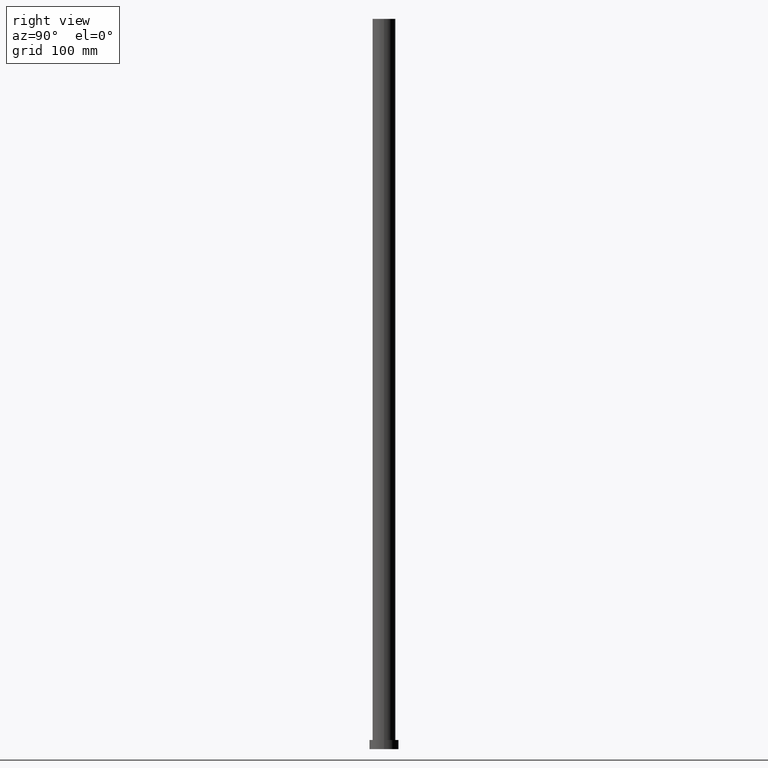
[diagram: clean part render]
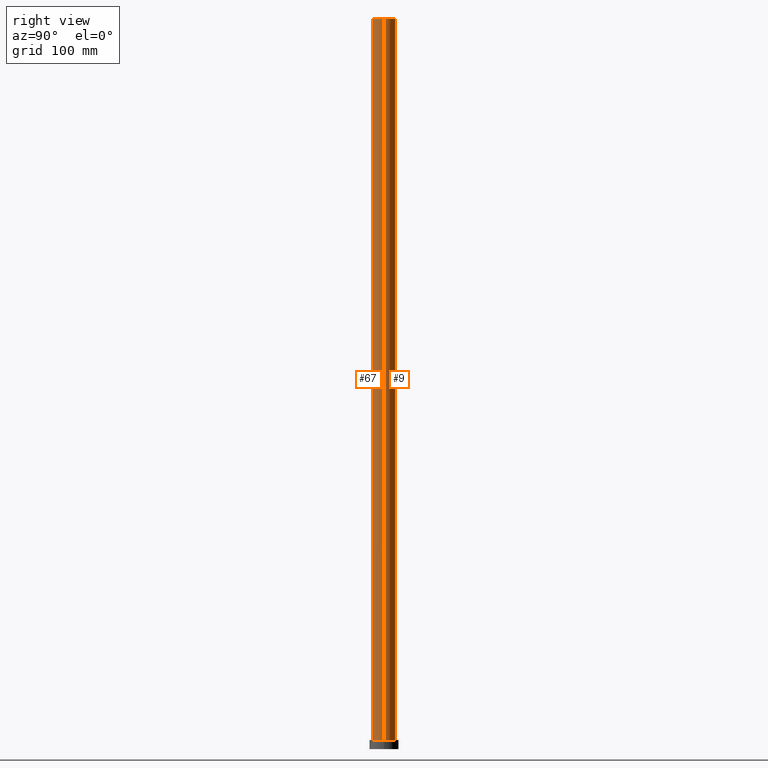
[diagram: same view with one multi-face feature highlighted, each face labeled with its STEP entity id]
A machine part, right view. The highlighted faces form ONE feature: a constant-radius fillet chain: 2 tangent blend faces with common blend radius 12.5 mm. The faces share edges in the B-rep.
Their STEP definitions:
[1] entity #9 (Cylinder):
#2 = DIRECTION ( 'NONE',  ( 0.000000000000000000, 0.000000000000000000, 1.000000000000000000 ) ) ;
#9 = ADVANCED_FACE ( 'NONE', ( #160 ), #121, .T. ) ;
#11 = ORIENTED_EDGE ( 'NONE', *, *, #185, .F. ) ;
#25 = AXIS2_PLACEMENT_3D ( 'NONE', #81, #53, #101 ) ;
#29 = CARTESIAN_POINT ( 'NONE',  ( 12.50000000000000000, 1.530808498934191127E-15, 800.0000000000000000 ) ) ;
#30 = ORIENTED_EDGE ( 'NONE', *, *, #228, .T. ) ;
#34 = EDGE_LOOP ( 'NONE', ( #11, #30, #189, #125 ) ) ;
#36 = VECTOR ( 'NONE', #246, 1000.000000000000000 ) ;
#50 = CIRCLE ( 'NONE', #239, 12.50000000000000000 ) ;
#53 = DIRECTION ( 'NONE',  ( -0.000000000000000000, -0.000000000000000000, -1.000000000000000000 ) ) ;
#57 = CARTESIAN_POINT ( 'NONE',  ( 12.50000000000000000, 1.530808498934191127E-15, 800.0000000000000000 ) ) ;
#60 = CIRCLE ( 'NONE', #61, 12.50000000000000000 ) ;
#61 = AXIS2_PLACEMENT_3D ( 'NONE', #175, #2, #240 ) ;
#66 = VERTEX_POINT ( 'NONE', #117 ) ;
#70 = VERTEX_POINT ( 'NONE', #181 ) ;
#81 = CARTESIAN_POINT ( 'NONE',  ( 0.000000000000000000, 0.000000000000000000, 800.0000000000000000 ) ) ;
#101 = DIRECTION ( 'NONE',  ( -1.000000000000000000, 0.000000000000000000, 0.000000000000000000 ) ) ;
#114 = LINE ( 'NONE', #194, #123 ) ;
#117 = CARTESIAN_POINT ( 'NONE',  ( -12.50000000000000000, 0.000000000000000000, 10.00000000000000000 ) ) ;
#118 = LINE ( 'NONE', #29, #36 ) ;
#121 = CYLINDRICAL_SURFACE ( 'NONE', #25, 12.50000000000000000 ) ;
#123 = VECTOR ( 'NONE', #211, 1000.000000000000000 ) ;
#125 = ORIENTED_EDGE ( 'NONE', *, *, #153, .F. ) ;
#137 = DIRECTION ( 'NONE',  ( 0.000000000000000000, 0.000000000000000000, 1.000000000000000000 ) ) ;
#153 = EDGE_CURVE ( 'NONE', #70, #66, #114, .T. ) ;
#160 = FACE_OUTER_BOUND ( 'NONE', #34, .T. ) ;
#175 = CARTESIAN_POINT ( 'NONE',  ( 0.000000000000000000, 0.000000000000000000, 800.0000000000000000 ) ) ;
#178 = VERTEX_POINT ( 'NONE', #57 ) ;
#179 = VERTEX_POINT ( 'NONE', #212 ) ;
#181 = CARTESIAN_POINT ( 'NONE',  ( -12.50000000000000000, 0.000000000000000000, 800.0000000000000000 ) ) ;
#185 = EDGE_CURVE ( 'NONE', #178, #70, #60, .T. ) ;
#189 = ORIENTED_EDGE ( 'NONE', *, *, #213, .T. ) ;
#194 = CARTESIAN_POINT ( 'NONE',  ( -12.50000000000000000, 0.000000000000000000, 800.0000000000000000 ) ) ;
#197 = DIRECTION ( 'NONE',  ( 1.000000000000000000, 0.000000000000000000, 0.000000000000000000 ) ) ;
#211 = DIRECTION ( 'NONE',  ( -0.000000000000000000, -0.000000000000000000, -1.000000000000000000 ) ) ;
#212 = CARTESIAN_POINT ( 'NONE',  ( 12.50000000000000000, 1.530808498934191127E-15, 10.00000000000000000 ) ) ;
#213 = EDGE_CURVE ( 'NONE', #179, #66, #50, .T. ) ;
#217 = CARTESIAN_POINT ( 'NONE',  ( 0.000000000000000000, 0.000000000000000000, 10.00000000000000000 ) ) ;
#228 = EDGE_CURVE ( 'NONE', #178, #179, #118, .T. ) ;
#239 = AXIS2_PLACEMENT_3D ( 'NONE', #217, #137, #197 ) ;
#240 = DIRECTION ( 'NONE',  ( 1.000000000000000000, 0.000000000000000000, 0.000000000000000000 ) ) ;
#246 = DIRECTION ( 'NONE',  ( -0.000000000000000000, -0.000000000000000000, -1.000000000000000000 ) ) ;
[2] entity #67 (Cylinder):
#19 = DIRECTION ( 'NONE',  ( 1.000000000000000000, 0.000000000000000000, 0.000000000000000000 ) ) ;
#22 = ORIENTED_EDGE ( 'NONE', *, *, #180, .F. ) ;
#29 = CARTESIAN_POINT ( 'NONE',  ( 12.50000000000000000, 1.530808498934191127E-15, 800.0000000000000000 ) ) ;
#36 = VECTOR ( 'NONE', #246, 1000.000000000000000 ) ;
#40 = EDGE_LOOP ( 'NONE', ( #225, #22, #124, #103 ) ) ;
#57 = CARTESIAN_POINT ( 'NONE',  ( 12.50000000000000000, 1.530808498934191127E-15, 800.0000000000000000 ) ) ;
#66 = VERTEX_POINT ( 'NONE', #117 ) ;
#67 = ADVANCED_FACE ( 'NONE', ( #244 ), #139, .T. ) ;
#70 = VERTEX_POINT ( 'NONE', #181 ) ;
#79 = AXIS2_PLACEMENT_3D ( 'NONE', #223, #203, #245 ) ;
#82 = CARTESIAN_POINT ( 'NONE',  ( 0.000000000000000000, 0.000000000000000000, 10.00000000000000000 ) ) ;
#90 = AXIS2_PLACEMENT_3D ( 'NONE', #82, #157, #166 ) ;
#103 = ORIENTED_EDGE ( 'NONE', *, *, #250, .T. ) ;
#104 = CIRCLE ( 'NONE', #173, 12.50000000000000000 ) ;
#113 = CARTESIAN_POINT ( 'NONE',  ( 0.000000000000000000, 0.000000000000000000, 800.0000000000000000 ) ) ;
#114 = LINE ( 'NONE', #194, #123 ) ;
#117 = CARTESIAN_POINT ( 'NONE',  ( -12.50000000000000000, 0.000000000000000000, 10.00000000000000000 ) ) ;
#118 = LINE ( 'NONE', #29, #36 ) ;
#123 = VECTOR ( 'NONE', #211, 1000.000000000000000 ) ;
#124 = ORIENTED_EDGE ( 'NONE', *, *, #153, .T. ) ;
#139 = CYLINDRICAL_SURFACE ( 'NONE', #79, 12.50000000000000000 ) ;
#153 = EDGE_CURVE ( 'NONE', #70, #66, #114, .T. ) ;
#157 = DIRECTION ( 'NONE',  ( 0.000000000000000000, 0.000000000000000000, 1.000000000000000000 ) ) ;
#166 = DIRECTION ( 'NONE',  ( 1.000000000000000000, 0.000000000000000000, 0.000000000000000000 ) ) ;
#173 = AXIS2_PLACEMENT_3D ( 'NONE', #113, #193, #19 ) ;
#174 = CIRCLE ( 'NONE', #90, 12.50000000000000000 ) ;
#178 = VERTEX_POINT ( 'NONE', #57 ) ;
#179 = VERTEX_POINT ( 'NONE', #212 ) ;
#180 = EDGE_CURVE ( 'NONE', #70, #178, #104, .T. ) ;
#181 = CARTESIAN_POINT ( 'NONE',  ( -12.50000000000000000, 0.000000000000000000, 800.0000000000000000 ) ) ;
#193 = DIRECTION ( 'NONE',  ( 0.000000000000000000, 0.000000000000000000, 1.000000000000000000 ) ) ;
#194 = CARTESIAN_POINT ( 'NONE',  ( -12.50000000000000000, 0.000000000000000000, 800.0000000000000000 ) ) ;
#203 = DIRECTION ( 'NONE',  ( -0.000000000000000000, -0.000000000000000000, -1.000000000000000000 ) ) ;
#211 = DIRECTION ( 'NONE',  ( -0.000000000000000000, -0.000000000000000000, -1.000000000000000000 ) ) ;
#212 = CARTESIAN_POINT ( 'NONE',  ( 12.50000000000000000, 1.530808498934191127E-15, 10.00000000000000000 ) ) ;
#223 = CARTESIAN_POINT ( 'NONE',  ( 0.000000000000000000, 0.000000000000000000, 800.0000000000000000 ) ) ;
#225 = ORIENTED_EDGE ( 'NONE', *, *, #228, .F. ) ;
#228 = EDGE_CURVE ( 'NONE', #178, #179, #118, .T. ) ;
#244 = FACE_OUTER_BOUND ( 'NONE', #40, .T. ) ;
#245 = DIRECTION ( 'NONE',  ( -1.000000000000000000, 0.000000000000000000, 0.000000000000000000 ) ) ;
#246 = DIRECTION ( 'NONE',  ( -0.000000000000000000, -0.000000000000000000, -1.000000000000000000 ) ) ;
#250 = EDGE_CURVE ( 'NONE', #66, #179, #174, .T. ) ;